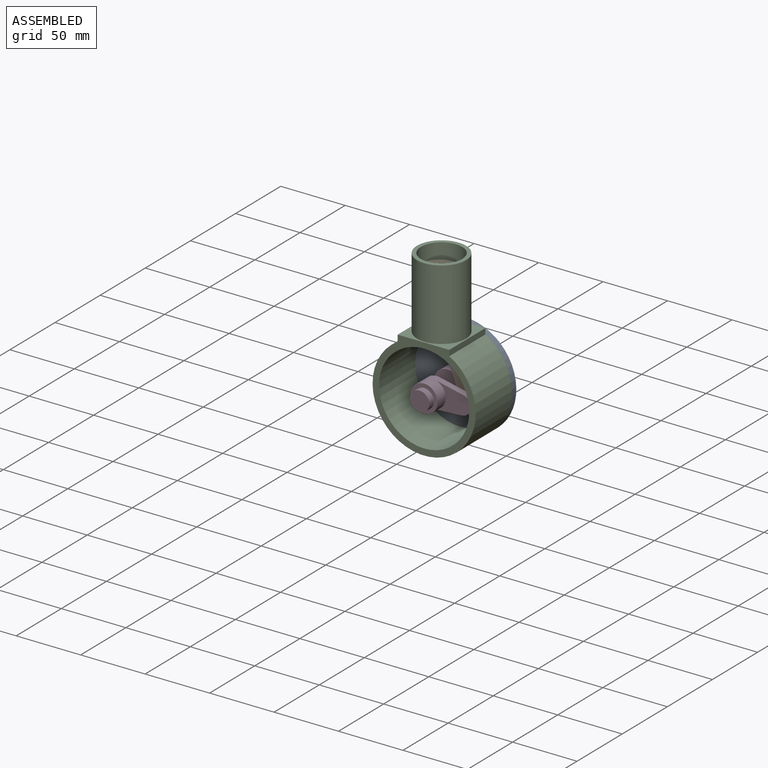
[diagram: assembled view]
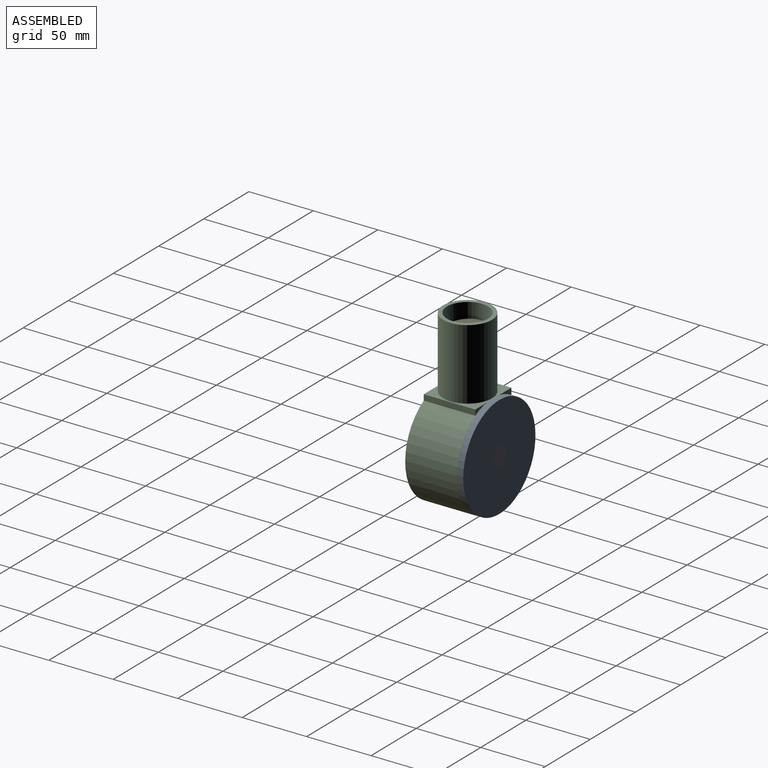
[diagram: assembled view, second angle]
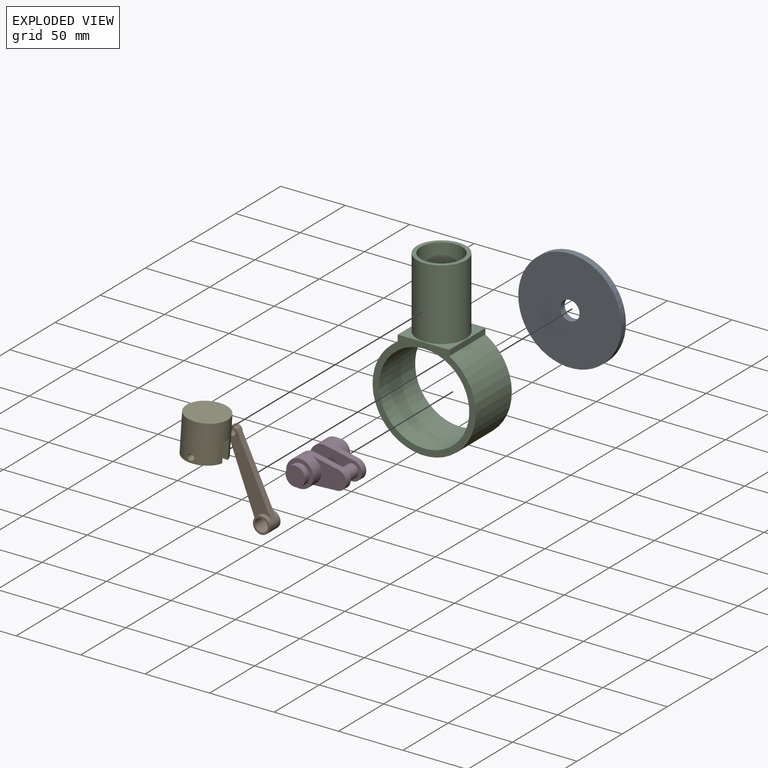
[diagram: exploded view]
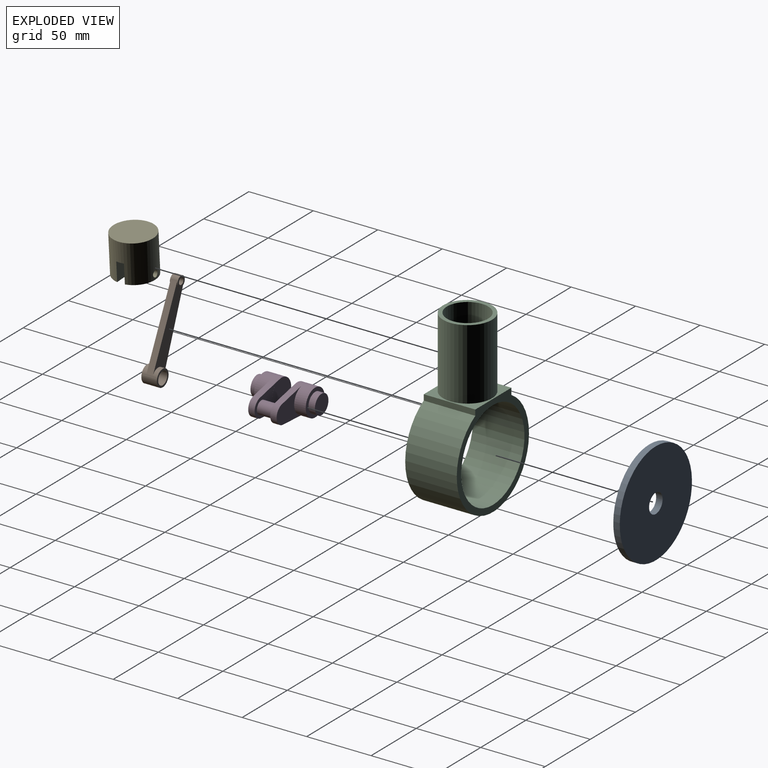
[diagram: exploded view, second angle]
ASSEMBLY  parts=5 mates=4
PART A: 4 faces, bbox 80x5x80 mm
  f0: cylinder r=7.5mm len=15mm, axis (0,1,0), area 235.6mm2, adj f2,f3
  f1: cylinder r=40mm len=80mm, axis (0,1,0), area 1256.6mm2, adj f2,f3
  f2: plane 80x80mm, normal (0,-1,0), area 4849.8mm2, adj f0,f1
  f3: plane 80x80mm, normal (0,1,0), area 4849.8mm2, adj f0,f1
PART B: 12 faces, bbox 13x12.1x73.2 mm
  f0: plane 62.26x12.05mm, normal (-1,0,0.04), area 315.3mm2, adj f1,f3,f4,f5,f6,f8
  f1: cylinder r=6.5mm len=13mm, axis (0,1,0), area 387.7mm2, adj f0,f3,f4,f5,f6,f7
  f2: cylinder r=5mm len=12.05mm, axis (0,1,0), area 378.6mm2, adj f3,f4
  f3: plane 13x13mm, normal (0,-1,0), area 54.2mm2, adj f0,f1,f2
  f4: plane 13x13mm, normal (0,1,0), area 54.2mm2, adj f0,f1,f2
  f5: plane 62x12.97mm, normal (0,-1,0), area 564.3mm2, adj f0,f1,f7,f8
  f6: plane 62x12.97mm, normal (0,1,0), area 564.3mm2, adj f0,f1,f7,f8
  f7: plane 62x5mm, normal (1,0,0.04), area 310.2mm2, adj f1,f5,f6,f8
  f8: cylinder r=4mm len=8mm, axis (0,1,0), area 92mm2, adj f0,f5,f6,f7,f9,f11
  f9: plane 8x8mm, normal (0,1,0), area 30.6mm2, adj f8,f10
  f10: cylinder r=2.5mm len=6mm, axis (0,1,0), area 94.2mm2, adj f9,f11
  f11: plane 8x8mm, normal (0,-1,0), area 30.6mm2, adj f8,f10
PART C: 10 faces, bbox 80x40x134.3 mm
  f0: plane 40x5mm, normal (-1,0,0), area 200mm2, adj f2,f4,f5,f7
  f1: plane 40x4.41mm, normal (1,0,0), area 176.3mm2, adj f2,f4,f5,f7
  f2: cylinder r=40mm len=80mm, axis (0,1,0), area 8377.4mm2, adj f0,f1,f4,f5
  f3: cylinder r=35mm len=70mm, axis (0,1,0), area 7967.1mm2, adj f4,f5,f9
  f4: plane 80x79.34mm, normal (0,-1,0), area 1221.3mm2, adj f0,f1,f2,f3,f7
  f5: plane 80x79.34mm, normal (0,1,0), area 1221.3mm2, adj f0,f1,f2,f3,f7
  f6: cylinder r=19mm len=55mm, axis (0,0,1), area 6565.9mm2, adj f7,f8
  f7: plane 40x40mm, normal (0,0,1), area 465.9mm2, adj f0,f1,f4,f5,f6
  f8: plane 38x38mm, normal (0,0,1), area 329.9mm2, adj f6,f9
  f9: cylinder r=16mm len=63.48mm, axis (0,0,1), area 6157.8mm2, adj f3,f8
PART D: 21 faces, bbox 40.5x50x21 mm
  f0: plane 27.85x20.45mm, normal (0,-1,0), area 244.1mm2, adj f5,f7,f8,f9,f10
  f1: plane 27.85x20.45mm, normal (0,1,0), area 322.7mm2, adj f5,f7,f8,f9
  f2: plane 15x15mm, normal (0,1,0), area 176.7mm2, adj f3
  f3: cylinder r=7.5mm len=15mm, axis (0,-1,0), area 235.6mm2, adj f2,f4
  f4: plane 21x21mm, normal (0,1,0), area 169.6mm2, adj f3,f5
  f5: cylinder r=10.5mm len=21mm, axis (0,1,0), area 782.6mm2, adj f0,f1,f4,f6,f7,f9
  f6: plane 21x21mm, normal (0,-1,0), area 346.4mm2, adj f5
  f7: plane 20.68x5mm, normal (0.13,0,-0.99), area 104.3mm2, adj f0,f1,f5,f8
  f8: cylinder r=7.5mm len=14.91mm, axis (0,1,0), area 109.5mm2, adj f0,f1,f7,f9
  f9: plane 21.23x5mm, normal (0.13,0,0.99), area 107.1mm2, adj f0,f1,f5,f8
  f10: cylinder r=5mm len=12.05mm, axis (0,1,0), area 378.6mm2, adj f0,f12
  f11: plane 27.86x20.45mm, normal (0,-1,0), area 322.7mm2, adj f13,f18,f19,f20
  f12: plane 27.86x20.45mm, normal (0,1,0), area 244.2mm2, adj f10,f13,f18,f19,f20
  f13: cylinder r=10.5mm len=21mm, axis (0,1,0), area 782.6mm2, adj f11,f12,f14,f17,f18,f20
  f14: plane 21x21mm, normal (0,-1,0), area 169.6mm2, adj f13,f15
  f15: cylinder r=7.5mm len=15mm, axis (0,1,0), area 235.6mm2, adj f14,f16
  f16: plane 15x15mm, normal (0,-1,0), area 176.7mm2, adj f15
  f17: plane 21x21mm, normal (0,1,0), area 346.4mm2, adj f13
  f18: plane 20.88x5mm, normal (0.13,0,-0.99), area 105.3mm2, adj f11,f12,f13,f19
  f19: cylinder r=7.5mm len=14.87mm, axis (0,-1,0), area 108mm2, adj f11,f12,f18,f20
  f20: plane 21.35x5mm, normal (0.13,0,0.99), area 107.7mm2, adj f11,f12,f13,f19
PART E: 9 faces, bbox 32x32x30 mm
  f0: plane 31.43x13mm, normal (0,0,-1), area 306.7mm2, adj f1,f5
  f1: cylinder r=16mm len=32mm, axis (0,0,1), area 2795.3mm2, adj f0,f2,f3,f4,f5,f6,f7,f8
  f2: plane 31.43x13mm, normal (0,0,-1), area 306.7mm2, adj f1,f4
  f3: plane 32x32mm, normal (0,0,1), area 804.2mm2, adj f1
  f4: plane 31.43x15mm, normal (1,0,0), area 451.9mm2, adj f1,f2,f6,f8
  f5: plane 31.43x15mm, normal (-1,0,0), area 451.9mm2, adj f0,f1,f6,f7
  f6: plane 32x6mm, normal (0,0,-1), area 190.9mm2, adj f1,f4,f5
  f7: cylinder r=2.5mm len=13mm, axis (1,0,0), area 202.7mm2, adj f1,f5
  f8: cylinder r=2.5mm len=13mm, axis (1,0,0), area 202.7mm2, adj f1,f4
PLACE A rot(axis=(1,0,0),180deg) t=(9.9,56.35,18.78)mm
PLACE B rot(axis=(0,-1,0),23.3deg) t=(32.33,36.34,17)mm
PLACE C t=(9.9,56.35,18.78)mm fixed
PLACE D rot(axis=(0,1,0),4.5deg) t=(9.9,56.35,18.78)mm
PLACE E rot(axis=(-0.03,0.03,-1),90.1deg) t=(9.28,36.34,100.44)mm
MATE revolute B.f1 <-> D.f10  axis (0,1,0) through (32.33,30.31,17)mm
MATE revolute A.f1 <-> D.f3  axis (0,1,0) through (9.9,61.35,18.78)mm
MATE revolute E.f7 <-> B.f10  axis (0,-1,0) through (7.53,39.34,74.54)mm
MATE fastened A.f1 <-> C.f3  axis (0,-1,0) through (9.9,56.35,18.78)mm
